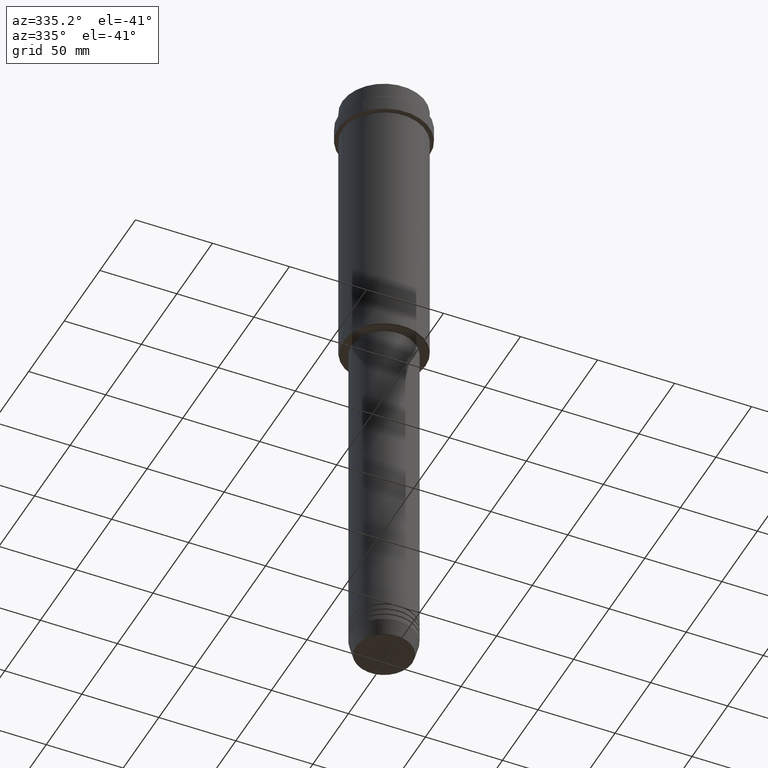
[diagram: clean part render]
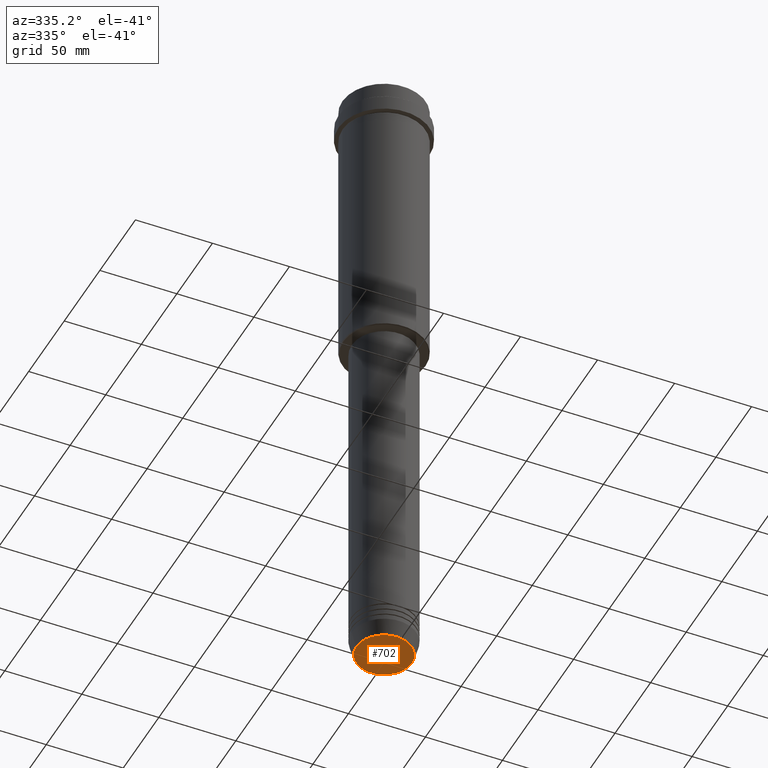
[diagram: same view with one face highlighted and labeled with its STEP entity id]
A machine part, auxiliary view. The second image highlights one B-rep face of the part: STEP entity #702.
In plain terms, the highlighted planar face has unit normal (0, -0, 1).
Its self-contained STEP definition (entity closure, byte-faithful):
#18 = DIRECTION ( 'NONE',  ( 0.000000000000000000, 0.000000000000000000, -1.000000000000000000 ) ) ;
#20 = CARTESIAN_POINT ( 'NONE',  ( 17.93684458169929030, 0.000000000000000000, -423.0000000000000000 ) ) ;
#123 = PLANE ( 'NONE',  #635 ) ;
#207 = ORIENTED_EDGE ( 'NONE', *, *, #854, .T. ) ;
#323 = CARTESIAN_POINT ( 'NONE',  ( 0.000000000000000000, 0.000000000000000000, -423.0000000000000000 ) ) ;
#391 = VERTEX_POINT ( 'NONE', #20 ) ;
#470 = DIRECTION ( 'NONE',  ( 1.000000000000000000, 0.000000000000000000, 0.000000000000000000 ) ) ;
#509 = VERTEX_POINT ( 'NONE', #511 ) ;
#511 = CARTESIAN_POINT ( 'NONE',  ( -17.93684458169929030, 2.226202879662625134E-15, -423.0000000000000000 ) ) ;
#516 = AXIS2_PLACEMENT_3D ( 'NONE', #701, #1335, #598 ) ;
#564 = CIRCLE ( 'NONE', #516, 17.93684458169929030 ) ;
#598 = DIRECTION ( 'NONE',  ( 1.000000000000000000, 0.000000000000000000, 0.000000000000000000 ) ) ;
#635 = AXIS2_PLACEMENT_3D ( 'NONE', #323, #1080, #1089 ) ;
#663 = FACE_OUTER_BOUND ( 'NONE', #1278, .T. ) ;
#700 = CARTESIAN_POINT ( 'NONE',  ( 0.000000000000000000, 0.000000000000000000, -423.0000000000000000 ) ) ;
#701 = CARTESIAN_POINT ( 'NONE',  ( 0.000000000000000000, 0.000000000000000000, -423.0000000000000000 ) ) ;
#702 = ADVANCED_FACE ( 'NONE', ( #663 ), #123, .F. ) ;
#854 = EDGE_CURVE ( 'NONE', #391, #509, #564, .T. ) ;
#882 = ORIENTED_EDGE ( 'NONE', *, *, #1378, .T. ) ;
#1080 = DIRECTION ( 'NONE',  ( 0.000000000000000000, -0.000000000000000000, 1.000000000000000000 ) ) ;
#1089 = DIRECTION ( 'NONE',  ( 1.000000000000000000, 0.000000000000000000, 0.000000000000000000 ) ) ;
#1134 = AXIS2_PLACEMENT_3D ( 'NONE', #700, #18, #470 ) ;
#1252 = CIRCLE ( 'NONE', #1134, 17.93684458169929030 ) ;
#1278 = EDGE_LOOP ( 'NONE', ( #207, #882 ) ) ;
#1335 = DIRECTION ( 'NONE',  ( 0.000000000000000000, 0.000000000000000000, -1.000000000000000000 ) ) ;
#1378 = EDGE_CURVE ( 'NONE', #509, #391, #1252, .T. ) ;